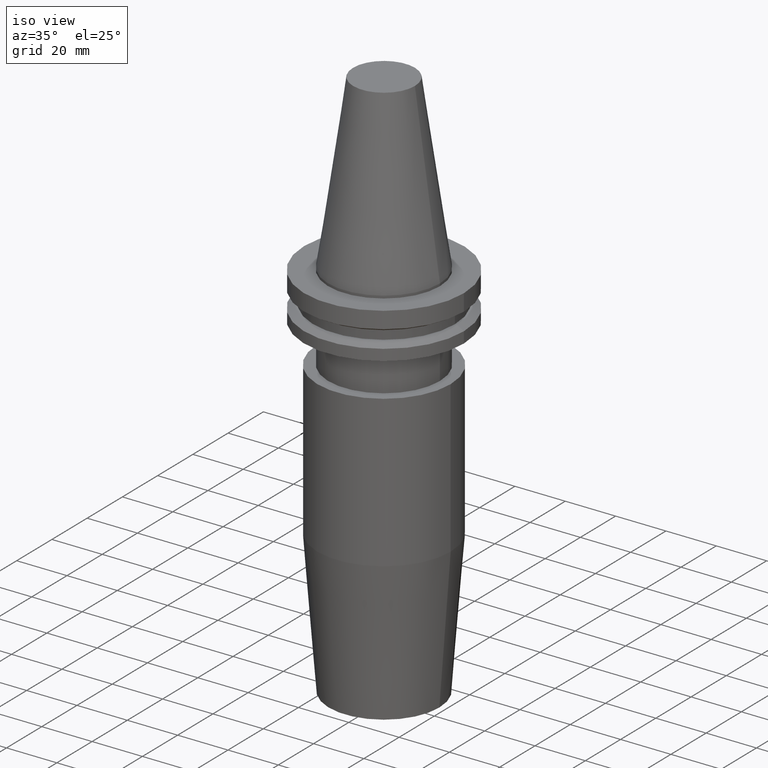
[diagram: clean part render]
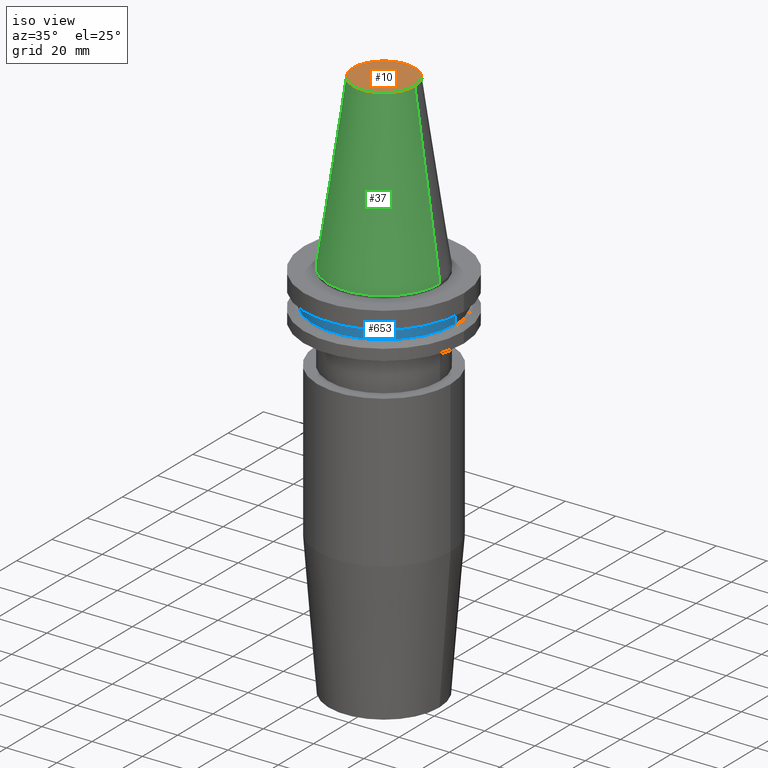
[diagram: same view with three faces highlighted in distinct colors, each labeled with its STEP entity id]
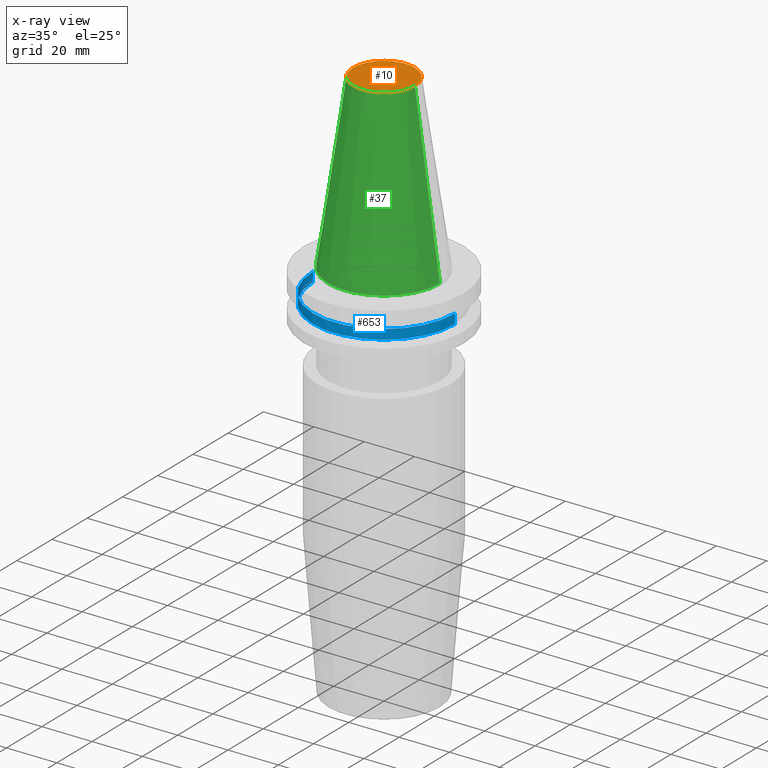
[diagram: x-ray of the same camera — body ghosted, the three highlighted faces saturated]
A machine part, iso view with three faces highlighted in distinct colors.
The next image is the same camera in x-ray (body ghosted, the three faces saturated) — at least one of them is partly hidden behind the body in this view.
Their STEP definitions:

[orange] entity #10 — the highlighted planar face has unit normal (0, 0, -1).
#10 = ADVANCED_FACE ( 'NONE', ( #95 ), #621, .F. ) ;
#21 = CIRCLE ( 'NONE', #333, 12.27178102086201150 ) ;
#33 = AXIS2_PLACEMENT_3D ( 'NONE', #382, #753, #311 ) ;
#95 = FACE_OUTER_BOUND ( 'NONE', #299, .T. ) ;
#127 = ORIENTED_EDGE ( 'NONE', *, *, #371, .T. ) ;
#225 = CARTESIAN_POINT ( 'NONE',  ( 0.000000000000000000, 0.000000000000000000, 68.25000000000000000 ) ) ;
#244 = ORIENTED_EDGE ( 'NONE', *, *, #674, .T. ) ;
#299 = EDGE_LOOP ( 'NONE', ( #244, #127 ) ) ;
#311 = DIRECTION ( 'NONE',  ( -1.000000000000000000, 0.000000000000000000, -0.000000000000000000 ) ) ;
#320 = VERTEX_POINT ( 'NONE', #803 ) ;
#333 = AXIS2_PLACEMENT_3D ( 'NONE', #225, #544, #736 ) ;
#371 = EDGE_CURVE ( 'NONE', #438, #320, #21, .T. ) ;
#382 = CARTESIAN_POINT ( 'NONE',  ( 0.000000000000000000, 12.27178102086201150, 68.25000000000000000 ) ) ;
#395 = CARTESIAN_POINT ( 'NONE',  ( 0.000000000000000000, 0.000000000000000000, 68.25000000000000000 ) ) ;
#438 = VERTEX_POINT ( 'NONE', #820 ) ;
#514 = CIRCLE ( 'NONE', #851, 12.27178102086201150 ) ;
#533 = DIRECTION ( 'NONE',  ( -0.000000000000000000, -0.000000000000000000, 1.000000000000000000 ) ) ;
#544 = DIRECTION ( 'NONE',  ( -0.000000000000000000, -0.000000000000000000, 1.000000000000000000 ) ) ;
#597 = DIRECTION ( 'NONE',  ( 1.000000000000000000, 0.000000000000000000, 0.000000000000000000 ) ) ;
#621 = PLANE ( 'NONE',  #33 ) ;
#674 = EDGE_CURVE ( 'NONE', #320, #438, #514, .T. ) ;
#736 = DIRECTION ( 'NONE',  ( 1.000000000000000000, 0.000000000000000000, 0.000000000000000000 ) ) ;
#753 = DIRECTION ( 'NONE',  ( 0.000000000000000000, 0.000000000000000000, -1.000000000000000000 ) ) ;
#803 = CARTESIAN_POINT ( 'NONE',  ( -12.27178102086201150, 0.000000000000000000, 68.25000000000000000 ) ) ;
#820 = CARTESIAN_POINT ( 'NONE',  ( 12.27178102086201150, 2.112318622904291439E-15, 68.25000000000000000 ) ) ;
#851 = AXIS2_PLACEMENT_3D ( 'NONE', #395, #533, #597 ) ;

[blue] entity #653 — the highlighted cylindrical surface (partial cylindrical patch) has radius 28.18 mm, axis along (-0, -0, 1).
#20 = VERTEX_POINT ( 'NONE', #641 ) ;
#43 = DIRECTION ( 'NONE',  ( -0.000000000000000000, -0.000000000000000000, 1.000000000000000000 ) ) ;
#88 = DIRECTION ( 'NONE',  ( 1.000000000000000000, 0.000000000000000000, 0.000000000000000000 ) ) ;
#99 = CARTESIAN_POINT ( 'NONE',  ( 28.17999999999999972, 0.000000000000000000, -9.204999999999991189 ) ) ;
#110 = DIRECTION ( 'NONE',  ( -0.000000000000000000, -0.000000000000000000, 1.000000000000000000 ) ) ;
#114 = DIRECTION ( 'NONE',  ( 1.000000000000000000, 0.000000000000000000, 0.000000000000000000 ) ) ;
#118 = CYLINDRICAL_SURFACE ( 'NONE', #210, 28.17999999999999972 ) ;
#122 = CARTESIAN_POINT ( 'NONE',  ( 0.000000000000000000, 0.000000000000000000, 68.25000000000000000 ) ) ;
#185 = CARTESIAN_POINT ( 'NONE',  ( 0.000000000000000000, 0.000000000000000000, -13.05499999999999794 ) ) ;
#188 = VERTEX_POINT ( 'NONE', #330 ) ;
#210 = AXIS2_PLACEMENT_3D ( 'NONE', #122, #325, #114 ) ;
#247 = LINE ( 'NONE', #556, #307 ) ;
#281 = CIRCLE ( 'NONE', #756, 28.17999999999999972 ) ;
#307 = VECTOR ( 'NONE', #43, 1000.000000000000000 ) ;
#325 = DIRECTION ( 'NONE',  ( -0.000000000000000000, -0.000000000000000000, 1.000000000000000000 ) ) ;
#330 = CARTESIAN_POINT ( 'NONE',  ( -28.17999999999999972, 3.451054679997241634E-15, -13.05499999999999794 ) ) ;
#366 = ORIENTED_EDGE ( 'NONE', *, *, #559, .T. ) ;
#378 = DIRECTION ( 'NONE',  ( -0.000000000000000000, -0.000000000000000000, 1.000000000000000000 ) ) ;
#437 = CARTESIAN_POINT ( 'NONE',  ( -28.17999999999999972, 3.451054679997241634E-15, -9.204999999999991189 ) ) ;
#449 = DIRECTION ( 'NONE',  ( -0.000000000000000000, -0.000000000000000000, 1.000000000000000000 ) ) ;
#458 = CIRCLE ( 'NONE', #717, 28.17999999999999972 ) ;
#464 = ORIENTED_EDGE ( 'NONE', *, *, #599, .F. ) ;
#489 = ORIENTED_EDGE ( 'NONE', *, *, #497, .F. ) ;
#497 = EDGE_CURVE ( 'NONE', #188, #532, #247, .T. ) ;
#506 = CARTESIAN_POINT ( 'NONE',  ( 28.17999999999999972, 0.000000000000000000, 68.25000000000000000 ) ) ;
#508 = EDGE_CURVE ( 'NONE', #188, #20, #281, .T. ) ;
#530 = FACE_OUTER_BOUND ( 'NONE', #583, .T. ) ;
#532 = VERTEX_POINT ( 'NONE', #437 ) ;
#556 = CARTESIAN_POINT ( 'NONE',  ( -28.17999999999999972, 3.451054679997241634E-15, 68.25000000000000000 ) ) ;
#559 = EDGE_CURVE ( 'NONE', #20, #578, #757, .T. ) ;
#578 = VERTEX_POINT ( 'NONE', #99 ) ;
#583 = EDGE_LOOP ( 'NONE', ( #489, #639, #366, #464 ) ) ;
#596 = VECTOR ( 'NONE', #378, 1000.000000000000000 ) ;
#599 = EDGE_CURVE ( 'NONE', #532, #578, #458, .T. ) ;
#620 = DIRECTION ( 'NONE',  ( 1.000000000000000000, 0.000000000000000000, 0.000000000000000000 ) ) ;
#639 = ORIENTED_EDGE ( 'NONE', *, *, #508, .T. ) ;
#641 = CARTESIAN_POINT ( 'NONE',  ( 28.17999999999999972, 0.000000000000000000, -13.05499999999999794 ) ) ;
#653 = ADVANCED_FACE ( 'NONE', ( #530 ), #118, .T. ) ;
#717 = AXIS2_PLACEMENT_3D ( 'NONE', #770, #449, #88 ) ;
#756 = AXIS2_PLACEMENT_3D ( 'NONE', #185, #110, #620 ) ;
#757 = LINE ( 'NONE', #506, #596 ) ;
#770 = CARTESIAN_POINT ( 'NONE',  ( 0.000000000000000000, 0.000000000000000000, -9.204999999999991189 ) ) ;

[green] entity #37 — the highlighted conical surface has half-angle 8.297 deg.
#4 = DIRECTION ( 'NONE',  ( -0.000000000000000000, -0.000000000000000000, 1.000000000000000000 ) ) ;
#11 = CARTESIAN_POINT ( 'NONE',  ( -22.22500000000000142, 0.000000000000000000, 0.000000000000000000 ) ) ;
#37 = ADVANCED_FACE ( 'NONE', ( #174 ), #729, .T. ) ;
#66 = DIRECTION ( 'NONE',  ( 0.1443082272672999711, 1.767266086135276757E-17, -0.9895327864921755756 ) ) ;
#80 = EDGE_CURVE ( 'NONE', #438, #97, #239, .T. ) ;
#97 = VERTEX_POINT ( 'NONE', #399 ) ;
#101 = ORIENTED_EDGE ( 'NONE', *, *, #828, .T. ) ;
#139 = DIRECTION ( 'NONE',  ( -0.1443082272672999711, 0.000000000000000000, -0.9895327864921755756 ) ) ;
#162 = EDGE_CURVE ( 'NONE', #320, #312, #396, .T. ) ;
#174 = FACE_OUTER_BOUND ( 'NONE', #375, .T. ) ;
#184 = CIRCLE ( 'NONE', #704, 22.22500000000000142 ) ;
#234 = VECTOR ( 'NONE', #66, 999.9999999999998863 ) ;
#239 = LINE ( 'NONE', #589, #234 ) ;
#283 = CARTESIAN_POINT ( 'NONE',  ( 0.000000000000000000, 0.000000000000000000, 0.000000000000000000 ) ) ;
#293 = ORIENTED_EDGE ( 'NONE', *, *, #674, .F. ) ;
#312 = VERTEX_POINT ( 'NONE', #11 ) ;
#320 = VERTEX_POINT ( 'NONE', #803 ) ;
#349 = DIRECTION ( 'NONE',  ( 1.000000000000000000, 0.000000000000000000, 0.000000000000000000 ) ) ;
#365 = DIRECTION ( 'NONE',  ( 0.000000000000000000, 0.000000000000000000, -1.000000000000000000 ) ) ;
#375 = EDGE_LOOP ( 'NONE', ( #457, #293, #595, #101 ) ) ;
#395 = CARTESIAN_POINT ( 'NONE',  ( 0.000000000000000000, 0.000000000000000000, 68.25000000000000000 ) ) ;
#396 = LINE ( 'NONE', #525, #468 ) ;
#399 = CARTESIAN_POINT ( 'NONE',  ( 22.22500000000000142, 2.721777511104992849E-15, 0.000000000000000000 ) ) ;
#427 = AXIS2_PLACEMENT_3D ( 'NONE', #567, #365, #631 ) ;
#438 = VERTEX_POINT ( 'NONE', #820 ) ;
#457 = ORIENTED_EDGE ( 'NONE', *, *, #80, .F. ) ;
#468 = VECTOR ( 'NONE', #139, 999.9999999999998863 ) ;
#514 = CIRCLE ( 'NONE', #851, 12.27178102086201150 ) ;
#525 = CARTESIAN_POINT ( 'NONE',  ( -22.22500000000000142, 0.000000000000000000, 0.000000000000000000 ) ) ;
#533 = DIRECTION ( 'NONE',  ( -0.000000000000000000, -0.000000000000000000, 1.000000000000000000 ) ) ;
#567 = CARTESIAN_POINT ( 'NONE',  ( 0.000000000000000000, 0.000000000000000000, 0.000000000000000000 ) ) ;
#589 = CARTESIAN_POINT ( 'NONE',  ( 22.22500000000000142, 2.721777511104992849E-15, 0.000000000000000000 ) ) ;
#595 = ORIENTED_EDGE ( 'NONE', *, *, #162, .T. ) ;
#597 = DIRECTION ( 'NONE',  ( 1.000000000000000000, 0.000000000000000000, 0.000000000000000000 ) ) ;
#631 = DIRECTION ( 'NONE',  ( -1.000000000000000000, 0.000000000000000000, 0.000000000000000000 ) ) ;
#674 = EDGE_CURVE ( 'NONE', #320, #438, #514, .T. ) ;
#704 = AXIS2_PLACEMENT_3D ( 'NONE', #283, #4, #349 ) ;
#729 = CONICAL_SURFACE ( 'NONE', #427, 22.22500000000000142, 0.1448138465474119174 ) ;
#803 = CARTESIAN_POINT ( 'NONE',  ( -12.27178102086201150, 0.000000000000000000, 68.25000000000000000 ) ) ;
#820 = CARTESIAN_POINT ( 'NONE',  ( 12.27178102086201150, 2.112318622904291439E-15, 68.25000000000000000 ) ) ;
#828 = EDGE_CURVE ( 'NONE', #312, #97, #184, .T. ) ;
#851 = AXIS2_PLACEMENT_3D ( 'NONE', #395, #533, #597 ) ;